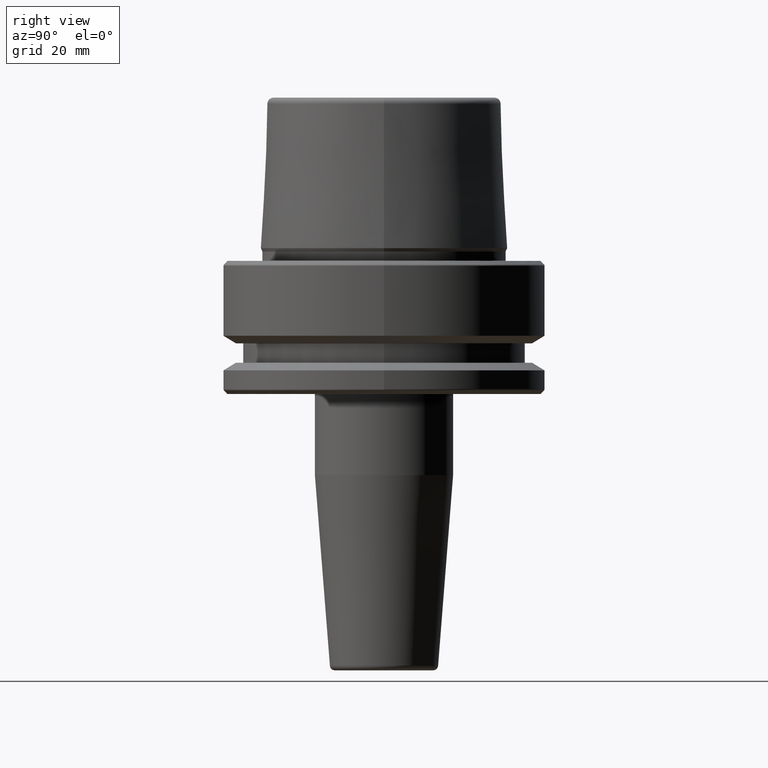
[diagram: clean part render]
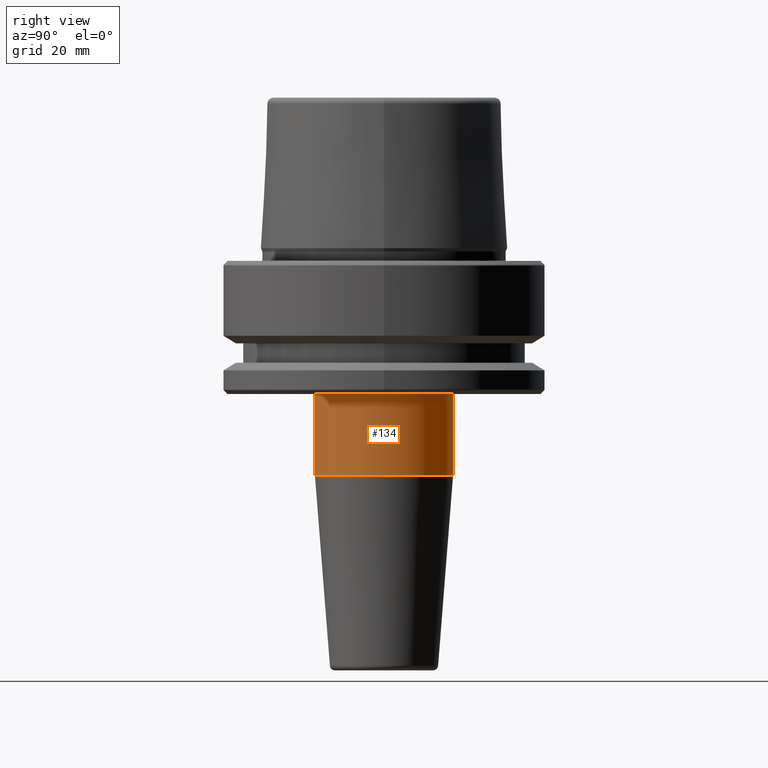
[diagram: same view with one face highlighted and labeled with its STEP entity id]
A machine part, right view. The second image highlights one B-rep face of the part: STEP entity #134.
In plain terms, the highlighted cylindrical surface (partial cylindrical patch) has radius 13.5 mm, axis along (-0, -0, -1).
Its self-contained STEP definition (entity closure, byte-faithful):
#5 = AXIS2_PLACEMENT_3D ( 'NONE', #1049, #760, #883 ) ;
#7 = EDGE_CURVE ( 'NONE', #67, #126, #566, .T. ) ;
#67 = VERTEX_POINT ( 'NONE', #746 ) ;
#85 = EDGE_CURVE ( 'NONE', #413, #126, #590, .T. ) ;
#95 = CIRCLE ( 'NONE', #877, 13.49999999999999500 ) ;
#104 = ORIENTED_EDGE ( 'NONE', *, *, #7, .F. ) ;
#126 = VERTEX_POINT ( 'NONE', #170 ) ;
#134 = ADVANCED_FACE ( 'NONE', ( #787 ), #258, .T. ) ;
#170 = CARTESIAN_POINT ( 'NONE',  ( 0.0000000000000000000, -13.50000000000000200, -41.88138579147234000 ) ) ;
#258 = CYLINDRICAL_SURFACE ( 'NONE', #5, 13.49999999999999500 ) ;
#307 = DIRECTION ( 'NONE',  ( 0.0000000000000000000, 1.000000000000000000, 0.0000000000000000000 ) ) ;
#364 = ORIENTED_EDGE ( 'NONE', *, *, #968, .T. ) ;
#381 = CARTESIAN_POINT ( 'NONE',  ( 1.653273178848926300E-015, -13.49999999999999500, -26.00000000000001100 ) ) ;
#406 = CARTESIAN_POINT ( 'NONE',  ( 0.0000000000000000000, -2.881346411192717100E-015, -41.88138579147234000 ) ) ;
#413 = VERTEX_POINT ( 'NONE', #381 ) ;
#450 = DIRECTION ( 'NONE',  ( -0.0000000000000000000, -1.814291554292374900E-016, -1.000000000000000000 ) ) ;
#452 = EDGE_LOOP ( 'NONE', ( #364, #1171, #104, #1040 ) ) ;
#498 = CARTESIAN_POINT ( 'NONE',  ( 0.0000000000000000000, 0.0000000000000000000, -26.00000000000001100 ) ) ;
#509 = DIRECTION ( 'NONE',  ( -0.0000000000000000000, -1.814291554292374900E-016, -1.000000000000000000 ) ) ;
#566 = CIRCLE ( 'NONE', #734, 13.49999999999999800 ) ;
#590 = LINE ( 'NONE', #659, #1071 ) ;
#607 = DIRECTION ( 'NONE',  ( 1.000000000000000000, 0.0000000000000000000, 0.0000000000000000000 ) ) ;
#615 = DIRECTION ( 'NONE',  ( -0.0000000000000000000, -1.814291554292374900E-016, -1.000000000000000000 ) ) ;
#659 = CARTESIAN_POINT ( 'NONE',  ( 1.653273178848926300E-015, -13.50000000000000500, -80.00000000000000000 ) ) ;
#734 = AXIS2_PLACEMENT_3D ( 'NONE', #406, #615, #307 ) ;
#746 = CARTESIAN_POINT ( 'NONE',  ( 1.653273178848926700E-015, 13.49999999999999500, -41.88138579147234000 ) ) ;
#760 = DIRECTION ( 'NONE',  ( -0.0000000000000000000, -1.814291554292374900E-016, -1.000000000000000000 ) ) ;
#762 = CARTESIAN_POINT ( 'NONE',  ( 0.0000000000000000000, 13.49999999999999600, -26.00000000000001100 ) ) ;
#779 = VECTOR ( 'NONE', #509, 1000.000000000000000 ) ;
#787 = FACE_OUTER_BOUND ( 'NONE', #452, .T. ) ;
#846 = VERTEX_POINT ( 'NONE', #762 ) ;
#877 = AXIS2_PLACEMENT_3D ( 'NONE', #498, #1181, #607 ) ;
#883 = DIRECTION ( 'NONE',  ( 0.0000000000000000000, 1.000000000000000000, 0.0000000000000000000 ) ) ;
#901 = CARTESIAN_POINT ( 'NONE',  ( 0.0000000000000000000, 13.49999999999998400, -80.00000000000000000 ) ) ;
#968 = EDGE_CURVE ( 'NONE', #846, #413, #95, .T. ) ;
#1030 = EDGE_CURVE ( 'NONE', #846, #67, #1039, .T. ) ;
#1039 = LINE ( 'NONE', #901, #779 ) ;
#1040 = ORIENTED_EDGE ( 'NONE', *, *, #1030, .F. ) ;
#1049 = CARTESIAN_POINT ( 'NONE',  ( 0.0000000000000000000, -9.797174393178822900E-015, -80.00000000000000000 ) ) ;
#1071 = VECTOR ( 'NONE', #450, 1000.000000000000000 ) ;
#1171 = ORIENTED_EDGE ( 'NONE', *, *, #85, .T. ) ;
#1181 = DIRECTION ( 'NONE',  ( 0.0000000000000000000, 0.0000000000000000000, -1.000000000000000000 ) ) ;